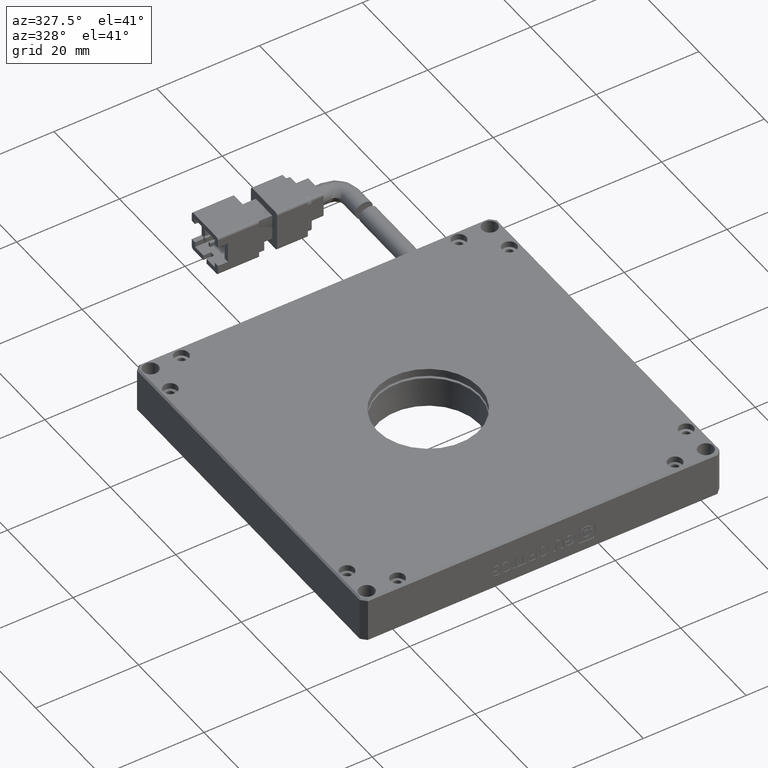
[diagram: clean part render]
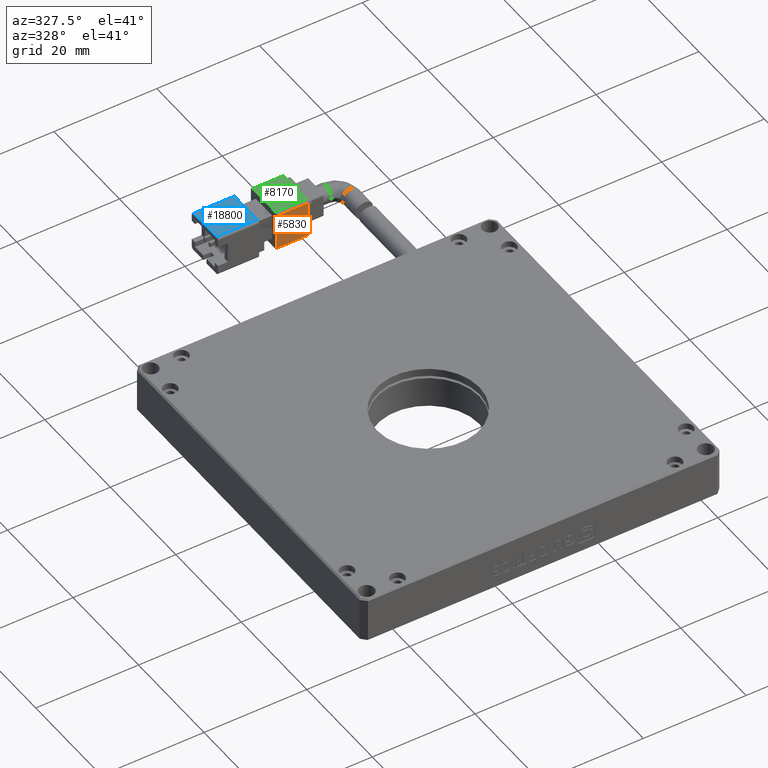
[diagram: same view with three faces highlighted in distinct colors, each labeled with its STEP entity id]
A machine part, auxiliary view with three faces highlighted in distinct colors.
Their STEP definitions:

[orange] entity #5830 — the highlighted planar face has unit normal (0, 1, 0).
#465 = EDGE_CURVE ( 'NONE', #2863, #16979, #7988, .T. ) ;
#532 = VECTOR ( 'NONE', #20570, 1000.000000000000000 ) ;
#753 = DIRECTION ( 'NONE',  ( -0.0000000000000000000, -0.0000000000000000000, 1.000000000000000000 ) ) ;
#1834 = CARTESIAN_POINT ( 'NONE',  ( -7.466307106599000300, 91.53591370558376600, -0.9999999999999991100 ) ) ;
#1941 = ORIENTED_EDGE ( 'NONE', *, *, #4709, .F. ) ;
#2863 = VERTEX_POINT ( 'NONE', #18157 ) ;
#3315 = LINE ( 'NONE', #20310, #7674 ) ;
#3628 = LINE ( 'NONE', #7324, #532 ) ;
#4222 = ORIENTED_EDGE ( 'NONE', *, *, #19402, .F. ) ;
#4709 = EDGE_CURVE ( 'NONE', #16979, #13108, #3315, .T. ) ;
#5468 = DIRECTION ( 'NONE',  ( 1.000000000000000000, 0.0000000000000000000, 0.0000000000000000000 ) ) ;
#5687 = EDGE_CURVE ( 'NONE', #13108, #20437, #11556, .T. ) ;
#5803 = DIRECTION ( 'NONE',  ( -1.000000000000000000, -0.0000000000000000000, -0.0000000000000000000 ) ) ;
#5830 = ADVANCED_FACE ( 'NONE', ( #19031 ), #7081, .F. ) ;
#6738 = CARTESIAN_POINT ( 'NONE',  ( -7.466307106599000300, 91.53591370558376600, 5.999999999999998200 ) ) ;
#7081 = PLANE ( 'NONE',  #17863 ) ;
#7150 = DIRECTION ( 'NONE',  ( 0.0000000000000000000, 1.000000000000000000, 1.239088197126291300E-016 ) ) ;
#7324 = CARTESIAN_POINT ( 'NONE',  ( -1.466307106599000500, 91.53591370558376600, -0.9999999999999991100 ) ) ;
#7475 = EDGE_LOOP ( 'NONE', ( #8204, #4222, #14389, #1941 ) ) ;
#7674 = VECTOR ( 'NONE', #753, 1000.000000000000000 ) ;
#7988 = LINE ( 'NONE', #8899, #16732 ) ;
#8204 = ORIENTED_EDGE ( 'NONE', *, *, #465, .F. ) ;
#8762 = CARTESIAN_POINT ( 'NONE',  ( -1.466307106599000500, 91.53591370558376600, 5.999999999999998200 ) ) ;
#8899 = CARTESIAN_POINT ( 'NONE',  ( -1.466307106599000500, 91.53591370558376600, -0.9999999999999991100 ) ) ;
#9939 = CARTESIAN_POINT ( 'NONE',  ( -1.466307106599000500, 91.53591370558376600, 5.999999999999998200 ) ) ;
#11556 = LINE ( 'NONE', #8762, #15167 ) ;
#12096 = DIRECTION ( 'NONE',  ( 0.0000000000000000000, -1.239088197126291300E-016, 1.000000000000000000 ) ) ;
#13108 = VERTEX_POINT ( 'NONE', #6738 ) ;
#14389 = ORIENTED_EDGE ( 'NONE', *, *, #5687, .F. ) ;
#15167 = VECTOR ( 'NONE', #5468, 1000.000000000000000 ) ;
#16732 = VECTOR ( 'NONE', #5803, 1000.000000000000000 ) ;
#16979 = VERTEX_POINT ( 'NONE', #1834 ) ;
#17863 = AXIS2_PLACEMENT_3D ( 'NONE', #20114, #7150, #12096 ) ;
#18157 = CARTESIAN_POINT ( 'NONE',  ( -1.466307106599000500, 91.53591370558376600, -0.9999999999999991100 ) ) ;
#19031 = FACE_OUTER_BOUND ( 'NONE', #7475, .T. ) ;
#19402 = EDGE_CURVE ( 'NONE', #20437, #2863, #3628, .T. ) ;
#20114 = CARTESIAN_POINT ( 'NONE',  ( -1.466307106599000500, 91.53591370558376600, -0.9999999999999991100 ) ) ;
#20310 = CARTESIAN_POINT ( 'NONE',  ( -7.466307106599000300, 91.53591370558376600, -0.9999999999999986700 ) ) ;
#20437 = VERTEX_POINT ( 'NONE', #9939 ) ;
#20570 = DIRECTION ( 'NONE',  ( -0.0000000000000000000, 1.239088197126291300E-016, -1.000000000000000000 ) ) ;

[blue] entity #18800 — the highlighted planar face has unit normal (0, 0, -1).
#710 = DIRECTION ( 'NONE',  ( -1.000000000000000000, -0.0000000000000000000, -0.0000000000000000000 ) ) ;
#967 = CARTESIAN_POINT ( 'NONE',  ( -18.96630710659900400, 92.03591370558376600, 6.500000000000000900 ) ) ;
#1319 = VECTOR ( 'NONE', #7099, 1000.000000000000000 ) ;
#1395 = VERTEX_POINT ( 'NONE', #21204 ) ;
#1517 = EDGE_CURVE ( 'NONE', #1395, #6924, #4546, .T. ) ;
#2921 = ORIENTED_EDGE ( 'NONE', *, *, #1517, .F. ) ;
#3690 = VERTEX_POINT ( 'NONE', #13688 ) ;
#4534 = CARTESIAN_POINT ( 'NONE',  ( -18.96630710659900400, 99.03591370558378100, 6.500000000000001800 ) ) ;
#4546 = LINE ( 'NONE', #967, #8406 ) ;
#6266 = ORIENTED_EDGE ( 'NONE', *, *, #12442, .F. ) ;
#6924 = VERTEX_POINT ( 'NONE', #4534 ) ;
#7099 = DIRECTION ( 'NONE',  ( -0.0000000000000000000, -1.000000000000000000, -1.239088197126291300E-016 ) ) ;
#7281 = DIRECTION ( 'NONE',  ( 0.0000000000000000000, 1.239088197126291300E-016, -1.000000000000000000 ) ) ;
#8018 = DIRECTION ( 'NONE',  ( 1.000000000000000000, 0.0000000000000000000, 0.0000000000000000000 ) ) ;
#8208 = VECTOR ( 'NONE', #8018, 1000.000000000000000 ) ;
#8406 = VECTOR ( 'NONE', #19085, 1000.000000000000000 ) ;
#8604 = EDGE_CURVE ( 'NONE', #3690, #12455, #14933, .T. ) ;
#8798 = VECTOR ( 'NONE', #710, 1000.000000000000000 ) ;
#9009 = CARTESIAN_POINT ( 'NONE',  ( -18.96630710659900400, 92.03591370558376600, 6.500000000000000900 ) ) ;
#10115 = FACE_OUTER_BOUND ( 'NONE', #21383, .T. ) ;
#10504 = DIRECTION ( 'NONE',  ( 0.0000000000000000000, 1.000000000000000000, 1.239088197126291300E-016 ) ) ;
#10636 = ORIENTED_EDGE ( 'NONE', *, *, #8604, .F. ) ;
#11000 = LINE ( 'NONE', #14552, #8208 ) ;
#12442 = EDGE_CURVE ( 'NONE', #6924, #3690, #11000, .T. ) ;
#12455 = VERTEX_POINT ( 'NONE', #17856 ) ;
#12820 = ORIENTED_EDGE ( 'NONE', *, *, #14682, .F. ) ;
#13688 = CARTESIAN_POINT ( 'NONE',  ( -10.96630710659900000, 99.03591370558378100, 6.500000000000001800 ) ) ;
#14552 = CARTESIAN_POINT ( 'NONE',  ( -18.96630710659900400, 99.03591370558378100, 6.500000000000001800 ) ) ;
#14682 = EDGE_CURVE ( 'NONE', #12455, #1395, #19110, .T. ) ;
#14933 = LINE ( 'NONE', #20207, #1319 ) ;
#17226 = CARTESIAN_POINT ( 'NONE',  ( -18.96630710659900400, 92.03591370558376600, 6.500000000000000900 ) ) ;
#17856 = CARTESIAN_POINT ( 'NONE',  ( -10.96630710659900000, 92.03591370558376600, 6.500000000000000900 ) ) ;
#18800 = ADVANCED_FACE ( 'NONE', ( #10115 ), #20375, .F. ) ;
#18820 = AXIS2_PLACEMENT_3D ( 'NONE', #9009, #7281, #10504 ) ;
#19085 = DIRECTION ( 'NONE',  ( 0.0000000000000000000, 1.000000000000000000, 1.239088197126291300E-016 ) ) ;
#19110 = LINE ( 'NONE', #17226, #8798 ) ;
#20207 = CARTESIAN_POINT ( 'NONE',  ( -10.96630710659900000, 92.03591370558376600, 6.500000000000000900 ) ) ;
#20375 = PLANE ( 'NONE',  #18820 ) ;
#21204 = CARTESIAN_POINT ( 'NONE',  ( -18.96630710659900400, 92.03591370558376600, 6.500000000000000900 ) ) ;
#21383 = EDGE_LOOP ( 'NONE', ( #6266, #2921, #12820, #10636 ) ) ;

[green] entity #8170 — the highlighted planar face has unit normal (0, 0, -1).
#850 = VERTEX_POINT ( 'NONE', #11367 ) ;
#954 = CARTESIAN_POINT ( 'NONE',  ( -7.466307106599000300, 99.03591370558378100, 6.499999999999998200 ) ) ;
#1210 = CARTESIAN_POINT ( 'NONE',  ( -7.466307106599000300, 92.03591370558376600, 6.499999999999998200 ) ) ;
#1824 = VERTEX_POINT ( 'NONE', #11050 ) ;
#2188 = ORIENTED_EDGE ( 'NONE', *, *, #8062, .F. ) ;
#2608 = EDGE_CURVE ( 'NONE', #11787, #17774, #11456, .T. ) ;
#2940 = CARTESIAN_POINT ( 'NONE',  ( -1.466307106599000500, 99.03591370558378100, 6.499999999999999100 ) ) ;
#3052 = VECTOR ( 'NONE', #12155, 1000.000000000000000 ) ;
#3172 = ORIENTED_EDGE ( 'NONE', *, *, #4628, .F. ) ;
#4628 = EDGE_CURVE ( 'NONE', #1824, #11787, #16943, .T. ) ;
#5116 = DIRECTION ( 'NONE',  ( 1.000000000000000000, 0.0000000000000000000, 0.0000000000000000000 ) ) ;
#5584 = CARTESIAN_POINT ( 'NONE',  ( -1.466307106599000500, 92.03591370558376600, 6.499999999999997300 ) ) ;
#5585 = EDGE_CURVE ( 'NONE', #17774, #850, #16996, .T. ) ;
#6674 = ORIENTED_EDGE ( 'NONE', *, *, #2608, .F. ) ;
#8062 = EDGE_CURVE ( 'NONE', #850, #1824, #16801, .T. ) ;
#8170 = ADVANCED_FACE ( 'NONE', ( #10598 ), #19060, .F. ) ;
#9415 = DIRECTION ( 'NONE',  ( 0.0000000000000000000, 2.478176394252581600E-016, -1.000000000000000000 ) ) ;
#9724 = ORIENTED_EDGE ( 'NONE', *, *, #5585, .F. ) ;
#10598 = FACE_OUTER_BOUND ( 'NONE', #20682, .T. ) ;
#11050 = CARTESIAN_POINT ( 'NONE',  ( -1.466307106599000500, 92.03591370558376600, 6.499999999999997300 ) ) ;
#11085 = DIRECTION ( 'NONE',  ( 0.0000000000000000000, 1.000000000000000000, -0.0000000000000000000 ) ) ;
#11367 = CARTESIAN_POINT ( 'NONE',  ( -1.466307106599000500, 99.03591370558378100, 6.499999999999999100 ) ) ;
#11456 = LINE ( 'NONE', #1210, #16367 ) ;
#11787 = VERTEX_POINT ( 'NONE', #20859 ) ;
#12155 = DIRECTION ( 'NONE',  ( -1.000000000000000000, -0.0000000000000000000, -0.0000000000000000000 ) ) ;
#12622 = DIRECTION ( 'NONE',  ( 0.0000000000000000000, 1.000000000000000000, 2.478176394252581600E-016 ) ) ;
#13163 = VECTOR ( 'NONE', #17118, 1000.000000000000000 ) ;
#15082 = CARTESIAN_POINT ( 'NONE',  ( -1.466307106599000500, 99.03591370558378100, 6.499999999999999100 ) ) ;
#16367 = VECTOR ( 'NONE', #11085, 1000.000000000000000 ) ;
#16801 = LINE ( 'NONE', #20354, #13163 ) ;
#16943 = LINE ( 'NONE', #5584, #3052 ) ;
#16996 = LINE ( 'NONE', #15082, #20340 ) ;
#17114 = AXIS2_PLACEMENT_3D ( 'NONE', #2940, #9415, #12622 ) ;
#17118 = DIRECTION ( 'NONE',  ( -0.0000000000000000000, -1.000000000000000000, -2.478176394252581600E-016 ) ) ;
#17774 = VERTEX_POINT ( 'NONE', #954 ) ;
#19060 = PLANE ( 'NONE',  #17114 ) ;
#20340 = VECTOR ( 'NONE', #5116, 1000.000000000000000 ) ;
#20354 = CARTESIAN_POINT ( 'NONE',  ( -1.466307106599000500, 99.03591370558378100, 6.499999999999999100 ) ) ;
#20682 = EDGE_LOOP ( 'NONE', ( #3172, #2188, #9724, #6674 ) ) ;
#20859 = CARTESIAN_POINT ( 'NONE',  ( -7.466307106599000300, 92.03591370558376600, 6.499999999999998200 ) ) ;